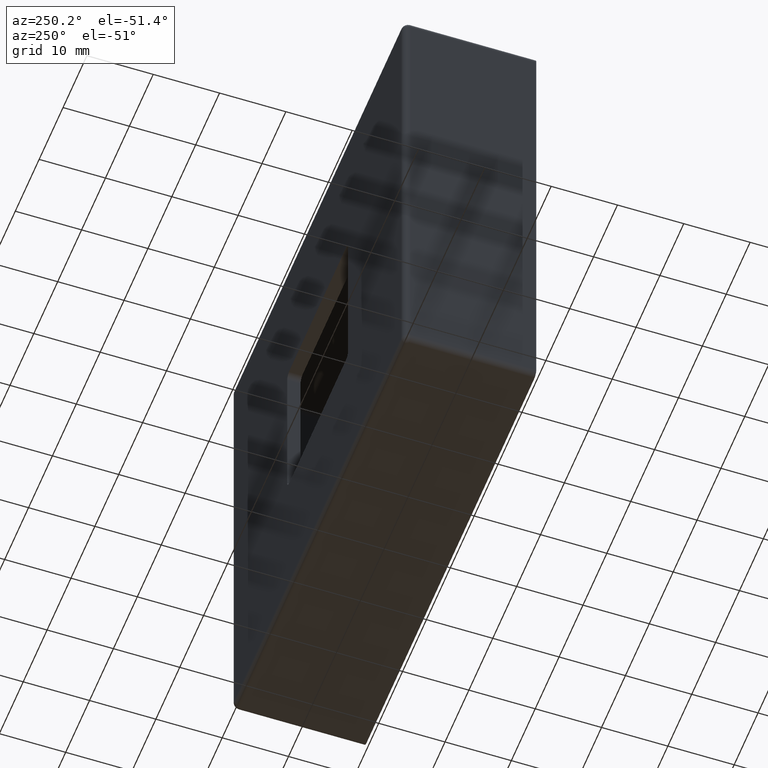
[diagram: clean part render]
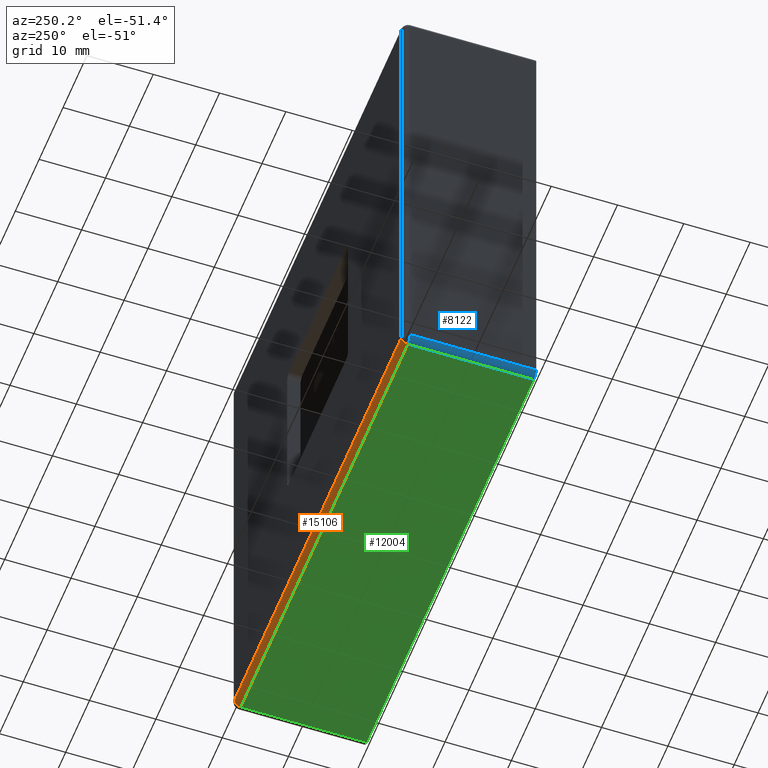
[diagram: same view with three faces highlighted in distinct colors, each labeled with its STEP entity id]
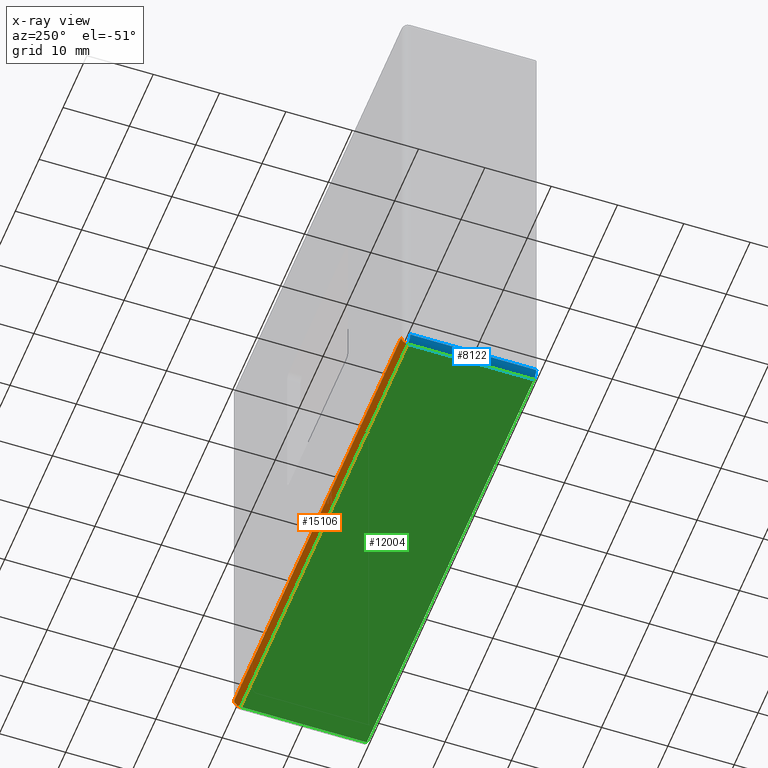
[diagram: x-ray of the same camera — body ghosted, the three highlighted faces saturated]
A machine part, auxiliary view with three faces highlighted in distinct colors.
The next image is the same camera in x-ray (body ghosted, the three faces saturated) — at least one of them is partly hidden behind the body in this view.
Their STEP definitions:

[orange] entity #15106 — the highlighted cylindrical surface (edge-blend (fillet) strip) has radius 1 mm, axis along (1, 0, -0).
#622 = DIRECTION ( 'NONE',  ( 1.000000000000000000, -0.000000000000000000, -9.637352644315597708E-17 ) ) ;
#912 = VECTOR ( 'NONE', #622, 1000.000000000000000 ) ;
#1297 = LINE ( 'NONE', #8182, #14243 ) ;
#1327 = DIRECTION ( 'NONE',  ( 1.387778780781444413E-14, 1.000000000000000000, 0.000000000000000000 ) ) ;
#1622 = EDGE_CURVE ( 'NONE', #7617, #16171, #2625, .T. ) ;
#2307 = AXIS2_PLACEMENT_3D ( 'NONE', #14469, #7910, #1327 ) ;
#2625 = CIRCLE ( 'NONE', #2307, 1.000000000000000888 ) ;
#2663 = DIRECTION ( 'NONE',  ( 6.938893903907222067E-15, 0.000000000000000000, 1.000000000000000000 ) ) ;
#3015 = ORIENTED_EDGE ( 'NONE', *, *, #12430, .F. ) ;
#3486 = VERTEX_POINT ( 'NONE', #11079 ) ;
#6066 = AXIS2_PLACEMENT_3D ( 'NONE', #14502, #11795, #2663 ) ;
#6930 = AXIS2_PLACEMENT_3D ( 'NONE', #13563, #13614, #9660 ) ;
#6968 = DIRECTION ( 'NONE',  ( -1.000000000000000000, 0.000000000000000000, 9.637352644315597708E-17 ) ) ;
#6971 = CYLINDRICAL_SURFACE ( 'NONE', #6930, 1.000000000000000888 ) ;
#7617 = VERTEX_POINT ( 'NONE', #8407 ) ;
#7910 = DIRECTION ( 'NONE',  ( 1.000000000000000000, -1.387778780781444256E-14, 0.000000000000000000 ) ) ;
#8182 = CARTESIAN_POINT ( 'NONE',  ( -36.00000000000002132, 20.00000000000000000, -34.99999999999999289 ) ) ;
#8231 = EDGE_CURVE ( 'NONE', #10188, #7617, #12190, .T. ) ;
#8407 = CARTESIAN_POINT ( 'NONE',  ( 34.99999999999996447, 19.00000000000000000, -36.00000000000000711 ) ) ;
#8683 = EDGE_CURVE ( 'NONE', #3486, #10188, #15678, .T. ) ;
#9291 = CARTESIAN_POINT ( 'NONE',  ( 34.99999999999997868, 20.00000000000000000, -35.00000000000000000 ) ) ;
#9615 = CARTESIAN_POINT ( 'NONE',  ( 35.99999999999997158, 19.00000000000000000, -36.00000000000000711 ) ) ;
#9660 = DIRECTION ( 'NONE',  ( -9.637352644315552102E-17, 0.000000000000000000, -1.000000000000000000 ) ) ;
#10188 = VERTEX_POINT ( 'NONE', #14612 ) ;
#11079 = CARTESIAN_POINT ( 'NONE',  ( -35.00000000000000711, 20.00000000000000000, -34.99999999999999289 ) ) ;
#11795 = DIRECTION ( 'NONE',  ( -1.000000000000000000, 0.000000000000000000, 6.938893903907221278E-15 ) ) ;
#12190 = LINE ( 'NONE', #9615, #912 ) ;
#12368 = ORIENTED_EDGE ( 'NONE', *, *, #1622, .F. ) ;
#12430 = EDGE_CURVE ( 'NONE', #16171, #3486, #1297, .T. ) ;
#13287 = ORIENTED_EDGE ( 'NONE', *, *, #8231, .F. ) ;
#13563 = CARTESIAN_POINT ( 'NONE',  ( -3.373073425510459247E-15, 19.00000000000000000, -35.00000000000000000 ) ) ;
#13614 = DIRECTION ( 'NONE',  ( 1.000000000000000000, 0.000000000000000000, -9.637352644315597708E-17 ) ) ;
#13915 = EDGE_LOOP ( 'NONE', ( #12368, #13287, #16244, #3015 ) ) ;
#13977 = FACE_OUTER_BOUND ( 'NONE', #13915, .T. ) ;
#14243 = VECTOR ( 'NONE', #6968, 1000.000000000000000 ) ;
#14469 = CARTESIAN_POINT ( 'NONE',  ( 34.99999999999996447, 19.00000000000000000, -35.00000000000000000 ) ) ;
#14502 = CARTESIAN_POINT ( 'NONE',  ( -35.00000000000000711, 19.00000000000000000, -34.99999999999999289 ) ) ;
#14612 = CARTESIAN_POINT ( 'NONE',  ( -35.00000000000001421, 19.00000000000000000, -36.00000000000000000 ) ) ;
#15106 = ADVANCED_FACE ( 'NONE', ( #13977 ), #6971, .T. ) ;
#15678 = CIRCLE ( 'NONE', #6066, 1.000000000000000888 ) ;
#16171 = VERTEX_POINT ( 'NONE', #9291 ) ;
#16244 = ORIENTED_EDGE ( 'NONE', *, *, #8683, .F. ) ;

[blue] entity #8122 — the highlighted cylindrical surface (edge-blend (fillet) strip) has radius 1 mm, axis along (0, -1, 0).
#676 = DIRECTION ( 'NONE',  ( -0.000000000000000000, -1.000000000000000000, -0.000000000000000000 ) ) ;
#710 = AXIS2_PLACEMENT_3D ( 'NONE', #6043, #676, #15254 ) ;
#810 = AXIS2_PLACEMENT_3D ( 'NONE', #9398, #13420, #14800 ) ;
#1789 = VERTEX_POINT ( 'NONE', #5484 ) ;
#2392 = LINE ( 'NONE', #8764, #7947 ) ;
#2589 = EDGE_CURVE ( 'NONE', #1789, #10188, #2392, .T. ) ;
#3169 = VECTOR ( 'NONE', #13300, 1000.000000000000000 ) ;
#3506 = EDGE_LOOP ( 'NONE', ( #14333, #7502, #16683, #15903 ) ) ;
#4112 = DIRECTION ( 'NONE',  ( 0.000000000000000000, 0.000000000000000000, 1.000000000000000000 ) ) ;
#4455 = CARTESIAN_POINT ( 'NONE',  ( -36.00000000000002132, 0.000000000000000000, -34.99999999999999289 ) ) ;
#4626 = DIRECTION ( 'NONE',  ( -0.000000000000000000, 1.000000000000000000, -0.000000000000000000 ) ) ;
#5294 = CARTESIAN_POINT ( 'NONE',  ( -35.00000000000001421, 19.00000000000000000, -34.99999999999999289 ) ) ;
#5484 = CARTESIAN_POINT ( 'NONE',  ( -35.00000000000001421, 0.000000000000000000, -36.00000000000000000 ) ) ;
#5600 = CYLINDRICAL_SURFACE ( 'NONE', #810, 1.000000000000000888 ) ;
#6043 = CARTESIAN_POINT ( 'NONE',  ( -35.00000000000001421, 0.000000000000000000, -34.99999999999999289 ) ) ;
#6439 = FACE_OUTER_BOUND ( 'NONE', #3506, .T. ) ;
#6621 = DIRECTION ( 'NONE',  ( 0.000000000000000000, 1.000000000000000000, 0.000000000000000000 ) ) ;
#6679 = EDGE_CURVE ( 'NONE', #12060, #13391, #12007, .T. ) ;
#7502 = ORIENTED_EDGE ( 'NONE', *, *, #6679, .F. ) ;
#7947 = VECTOR ( 'NONE', #4626, 1000.000000000000000 ) ;
#8122 = ADVANCED_FACE ( 'NONE', ( #6439 ), #5600, .T. ) ;
#8657 = EDGE_CURVE ( 'NONE', #10188, #12060, #12575, .T. ) ;
#8764 = CARTESIAN_POINT ( 'NONE',  ( -35.00000000000001421, 20.00000000000000000, -36.00000000000000000 ) ) ;
#9398 = CARTESIAN_POINT ( 'NONE',  ( -35.00000000000001421, 20.00000000000000000, -34.99999999999999289 ) ) ;
#9703 = EDGE_CURVE ( 'NONE', #13391, #1789, #15966, .T. ) ;
#10188 = VERTEX_POINT ( 'NONE', #14612 ) ;
#12007 = LINE ( 'NONE', #14857, #3169 ) ;
#12060 = VERTEX_POINT ( 'NONE', #14698 ) ;
#12575 = CIRCLE ( 'NONE', #15217, 1.000000000000000888 ) ;
#13300 = DIRECTION ( 'NONE',  ( 0.000000000000000000, -1.000000000000000000, 0.000000000000000000 ) ) ;
#13391 = VERTEX_POINT ( 'NONE', #4455 ) ;
#13420 = DIRECTION ( 'NONE',  ( 0.000000000000000000, -1.000000000000000000, 0.000000000000000000 ) ) ;
#14333 = ORIENTED_EDGE ( 'NONE', *, *, #9703, .F. ) ;
#14612 = CARTESIAN_POINT ( 'NONE',  ( -35.00000000000001421, 19.00000000000000000, -36.00000000000000000 ) ) ;
#14698 = CARTESIAN_POINT ( 'NONE',  ( -36.00000000000002132, 19.00000000000000000, -34.99999999999999289 ) ) ;
#14800 = DIRECTION ( 'NONE',  ( 0.000000000000000000, 0.000000000000000000, -1.000000000000000000 ) ) ;
#14857 = CARTESIAN_POINT ( 'NONE',  ( -36.00000000000002132, 20.00000000000000000, -34.99999999999999289 ) ) ;
#15217 = AXIS2_PLACEMENT_3D ( 'NONE', #5294, #6621, #4112 ) ;
#15254 = DIRECTION ( 'NONE',  ( 0.000000000000000000, 0.000000000000000000, 1.000000000000000000 ) ) ;
#15903 = ORIENTED_EDGE ( 'NONE', *, *, #2589, .F. ) ;
#15966 = CIRCLE ( 'NONE', #710, 1.000000000000000888 ) ;
#16683 = ORIENTED_EDGE ( 'NONE', *, *, #8657, .F. ) ;

[green] entity #12004 — the highlighted planar face has unit normal (0, -0, 1).
#622 = DIRECTION ( 'NONE',  ( 1.000000000000000000, -0.000000000000000000, -9.637352644315597708E-17 ) ) ;
#912 = VECTOR ( 'NONE', #622, 1000.000000000000000 ) ;
#1249 = EDGE_CURVE ( 'NONE', #7617, #10895, #7773, .T. ) ;
#1789 = VERTEX_POINT ( 'NONE', #5484 ) ;
#2314 = CARTESIAN_POINT ( 'NONE',  ( 34.99999999999996447, 20.00000000000000000, -36.00000000000000711 ) ) ;
#2392 = LINE ( 'NONE', #8764, #7947 ) ;
#2589 = EDGE_CURVE ( 'NONE', #1789, #10188, #2392, .T. ) ;
#3256 = DIRECTION ( 'NONE',  ( 1.000000000000000000, 0.000000000000000000, -9.637352644315597708E-17 ) ) ;
#3733 = VECTOR ( 'NONE', #15798, 1000.000000000000000 ) ;
#4497 = EDGE_LOOP ( 'NONE', ( #14401, #13085, #6376, #16454 ) ) ;
#4626 = DIRECTION ( 'NONE',  ( -0.000000000000000000, 1.000000000000000000, -0.000000000000000000 ) ) ;
#5484 = CARTESIAN_POINT ( 'NONE',  ( -35.00000000000001421, 0.000000000000000000, -36.00000000000000000 ) ) ;
#5884 = DIRECTION ( 'NONE',  ( 9.637352644315597708E-17, -0.000000000000000000, 1.000000000000000000 ) ) ;
#6376 = ORIENTED_EDGE ( 'NONE', *, *, #14077, .T. ) ;
#6655 = AXIS2_PLACEMENT_3D ( 'NONE', #12375, #5884, #3256 ) ;
#7617 = VERTEX_POINT ( 'NONE', #8407 ) ;
#7773 = LINE ( 'NONE', #2314, #10855 ) ;
#7947 = VECTOR ( 'NONE', #4626, 1000.000000000000000 ) ;
#8231 = EDGE_CURVE ( 'NONE', #10188, #7617, #12190, .T. ) ;
#8407 = CARTESIAN_POINT ( 'NONE',  ( 34.99999999999996447, 19.00000000000000000, -36.00000000000000711 ) ) ;
#8764 = CARTESIAN_POINT ( 'NONE',  ( -35.00000000000001421, 20.00000000000000000, -36.00000000000000000 ) ) ;
#9615 = CARTESIAN_POINT ( 'NONE',  ( 35.99999999999997158, 19.00000000000000000, -36.00000000000000711 ) ) ;
#10122 = FACE_OUTER_BOUND ( 'NONE', #4497, .T. ) ;
#10188 = VERTEX_POINT ( 'NONE', #14612 ) ;
#10855 = VECTOR ( 'NONE', #11503, 1000.000000000000000 ) ;
#10895 = VERTEX_POINT ( 'NONE', #16930 ) ;
#11503 = DIRECTION ( 'NONE',  ( 0.000000000000000000, -1.000000000000000000, 0.000000000000000000 ) ) ;
#12004 = ADVANCED_FACE ( 'NONE', ( #10122 ), #13197, .F. ) ;
#12190 = LINE ( 'NONE', #9615, #912 ) ;
#12375 = CARTESIAN_POINT ( 'NONE',  ( -36.00000000000002132, 20.00000000000000000, -36.00000000000000000 ) ) ;
#13085 = ORIENTED_EDGE ( 'NONE', *, *, #1249, .T. ) ;
#13197 = PLANE ( 'NONE',  #6655 ) ;
#14077 = EDGE_CURVE ( 'NONE', #10895, #1789, #14214, .T. ) ;
#14214 = LINE ( 'NONE', #14590, #3733 ) ;
#14401 = ORIENTED_EDGE ( 'NONE', *, *, #8231, .T. ) ;
#14590 = CARTESIAN_POINT ( 'NONE',  ( -36.00000000000002132, 0.000000000000000000, -36.00000000000000000 ) ) ;
#14612 = CARTESIAN_POINT ( 'NONE',  ( -35.00000000000001421, 19.00000000000000000, -36.00000000000000000 ) ) ;
#15798 = DIRECTION ( 'NONE',  ( -1.000000000000000000, -0.000000000000000000, 9.637352644315597708E-17 ) ) ;
#16454 = ORIENTED_EDGE ( 'NONE', *, *, #2589, .T. ) ;
#16930 = CARTESIAN_POINT ( 'NONE',  ( 34.99999999999996447, 0.000000000000000000, -36.00000000000000711 ) ) ;